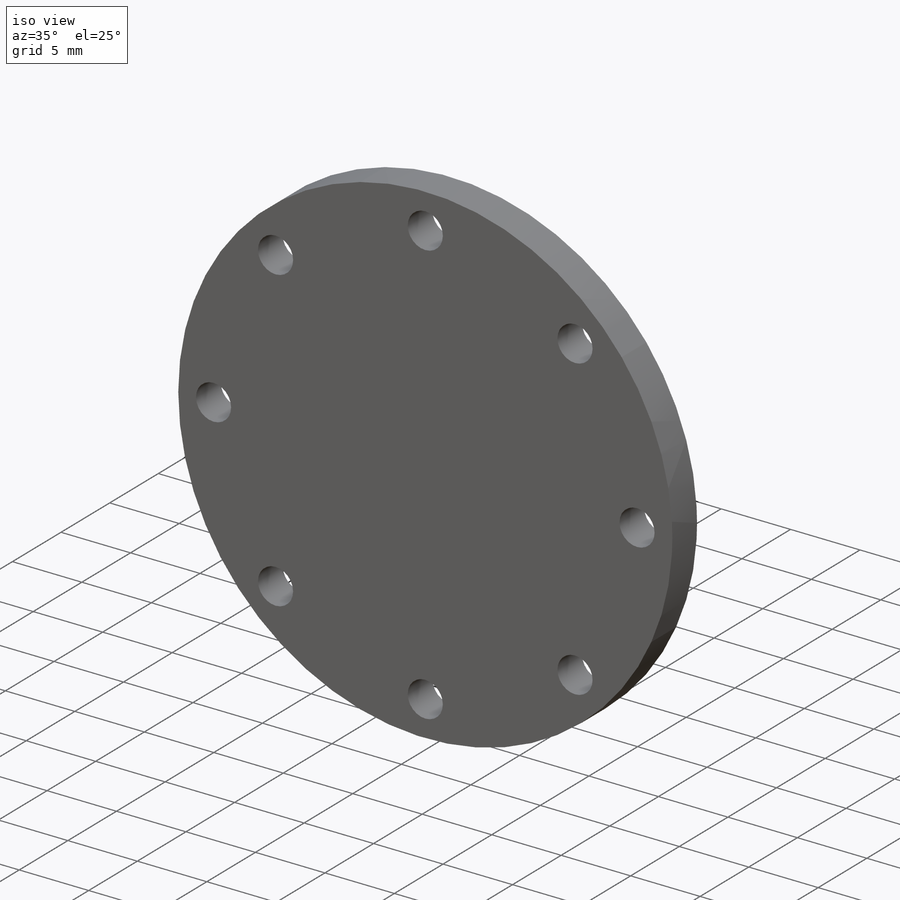
[diagram: iso view]
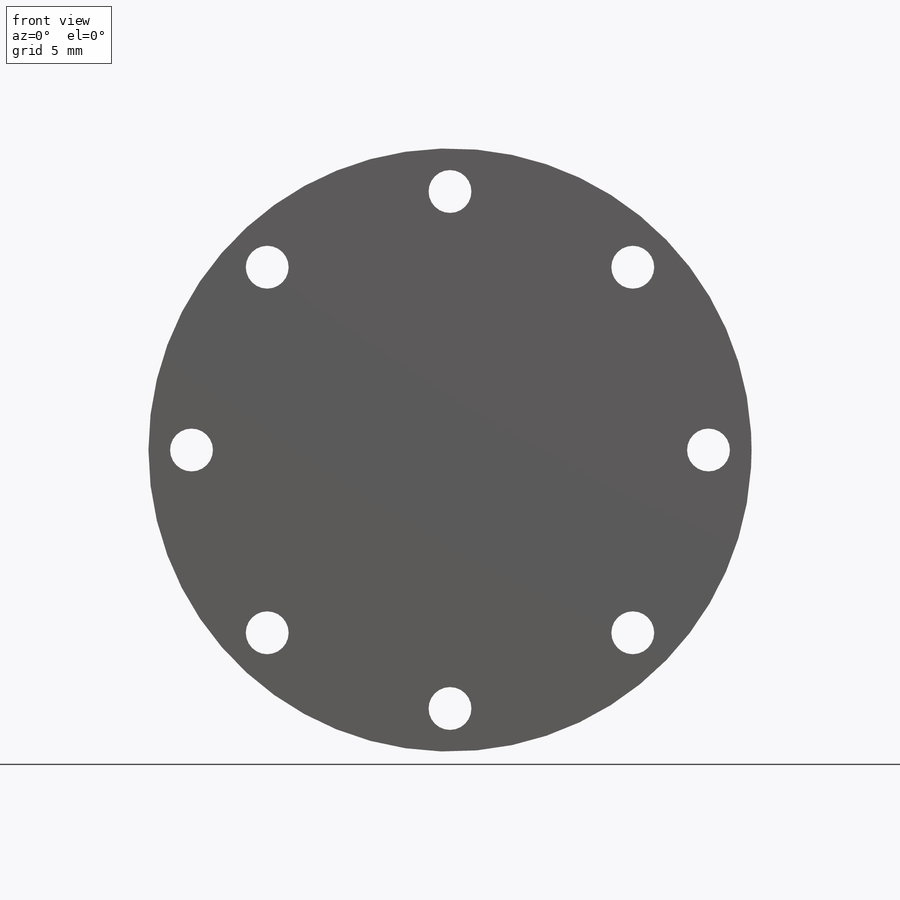
[diagram: front view]
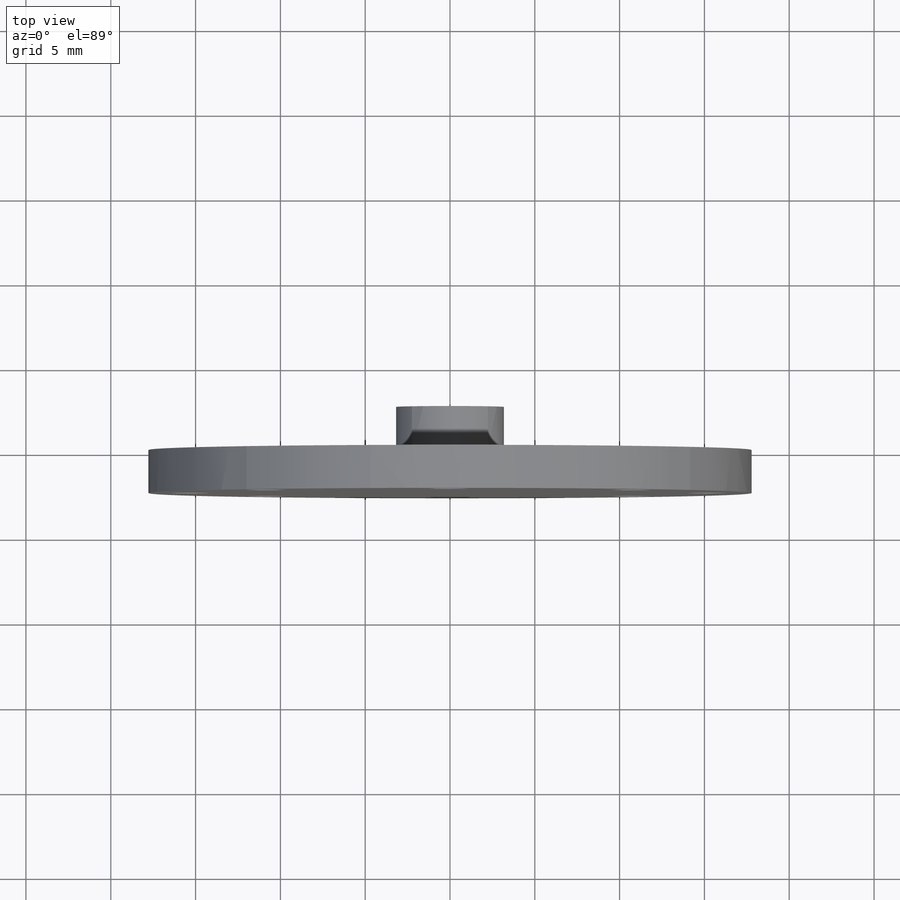
[diagram: top view]
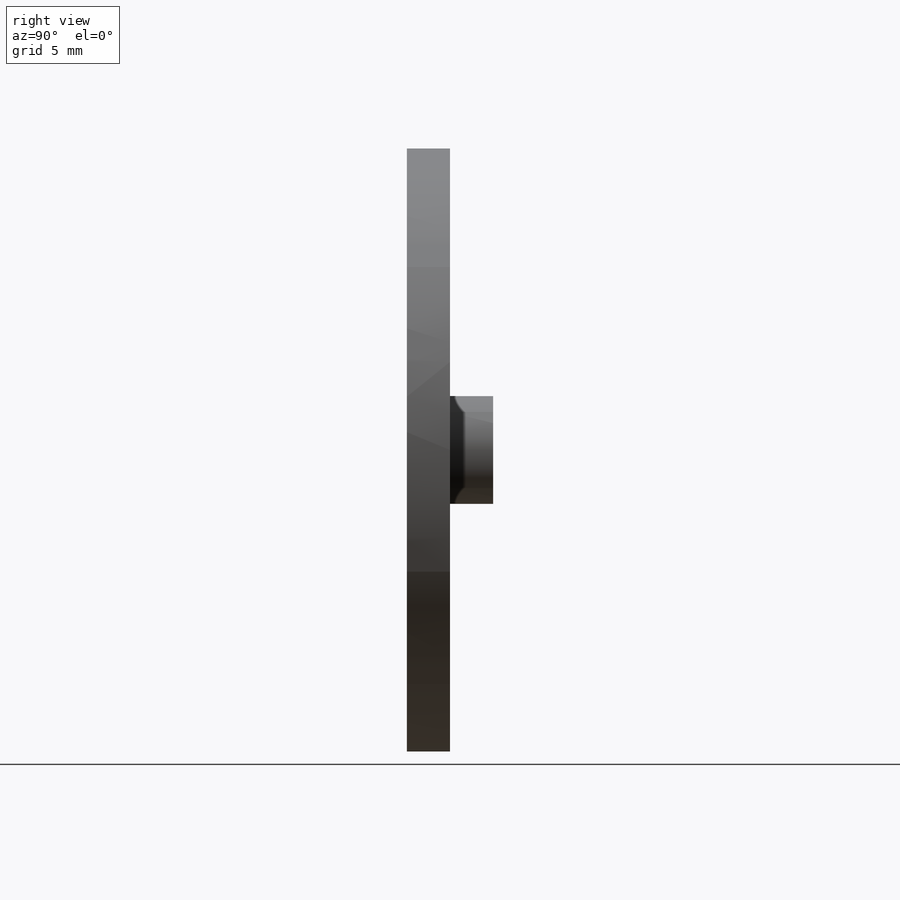
[diagram: right view]
SOLIDWORKS PART (.sldprt)
format: sldprt  version: not decoded by parser v0  size: 172,544 bytes
history: native  units: mm
features: sketch x5, extrude x2, material x1, hole x1, pattern_circular x1 (+16 scaffold rows collapsed)
feature tree (26):
  scaffold x16  (default folders/planes/origin — collapsed)
  material  "Material <not specified>"
  sketch  "Sketch1"  dims[D1=19.05mm]
  extrude  "Extrude1"  Depth=2.54mm
  sketch  "Sketch5"  dims[D1=5.08mm]
  hole  "#39 (0.0995) Diameter Hole2"  Diameter=2.5273mm Depth=10.16mm
  sketch  "3DSketch3"
  sketch  "Sketch6"  dims[hole-wizard template sketch: 47 standard entries collapsed; hole parameters kept: c15.Hole Depth=10.16mm c15.D3=~14.816244mm c15.Drill Angle=118.0deg]
  pattern_circular  "CirPattern2"  Count=8 Angle=360deg
  sketch  "Sketch7"  dims[D1=~4.999342mm]
  extrude  "Extrude2"  Depth=2.54mm
decode coverage: 8 of 9 modeling features carry decoded parameters
note: ~ marks probable driven/reference dimensions
note: suppression state not decoded; provenance and decode notes live in map.json
